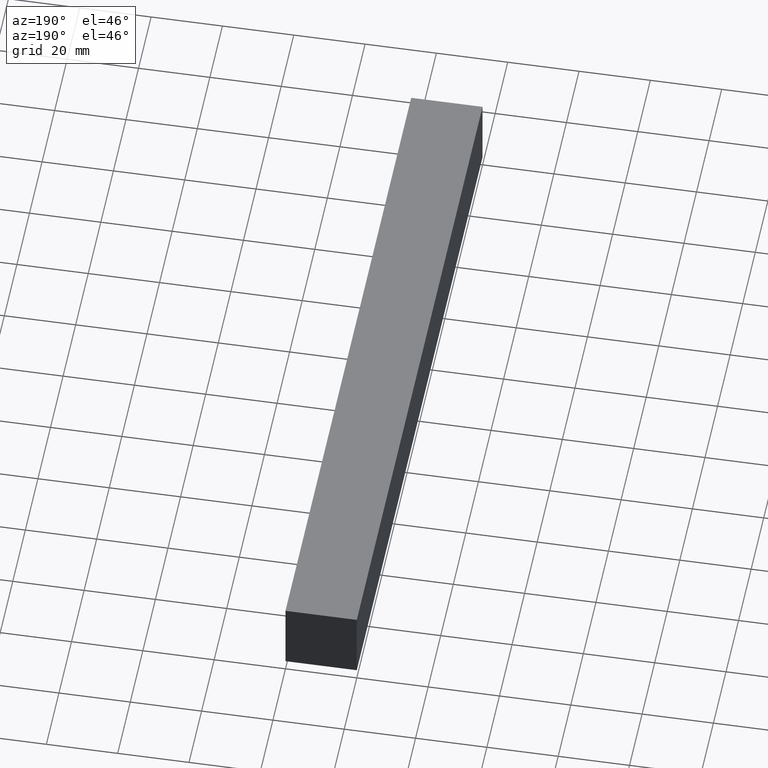
[diagram: clean part render]
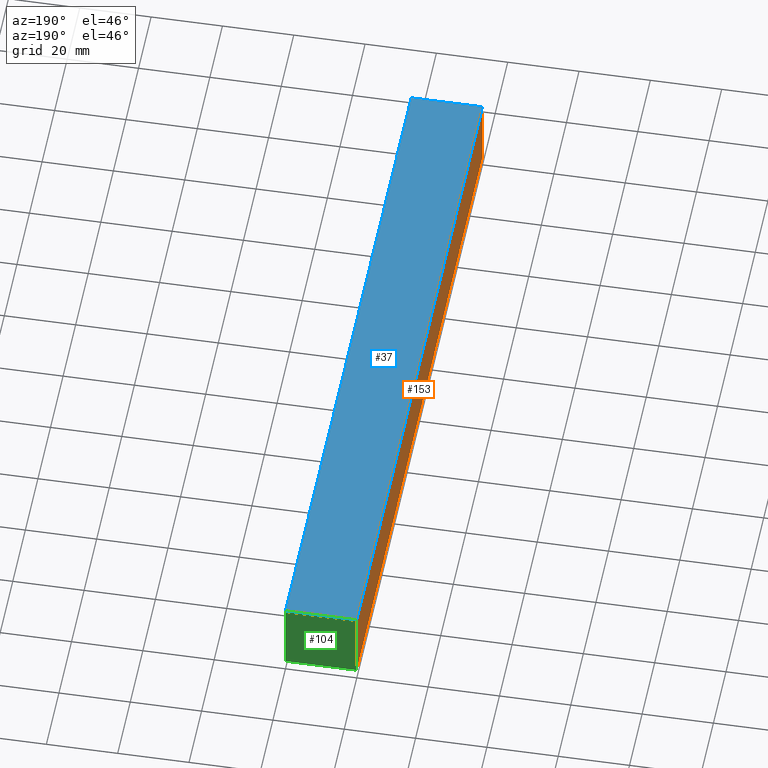
[diagram: same view with three faces highlighted in distinct colors, each labeled with its STEP entity id]
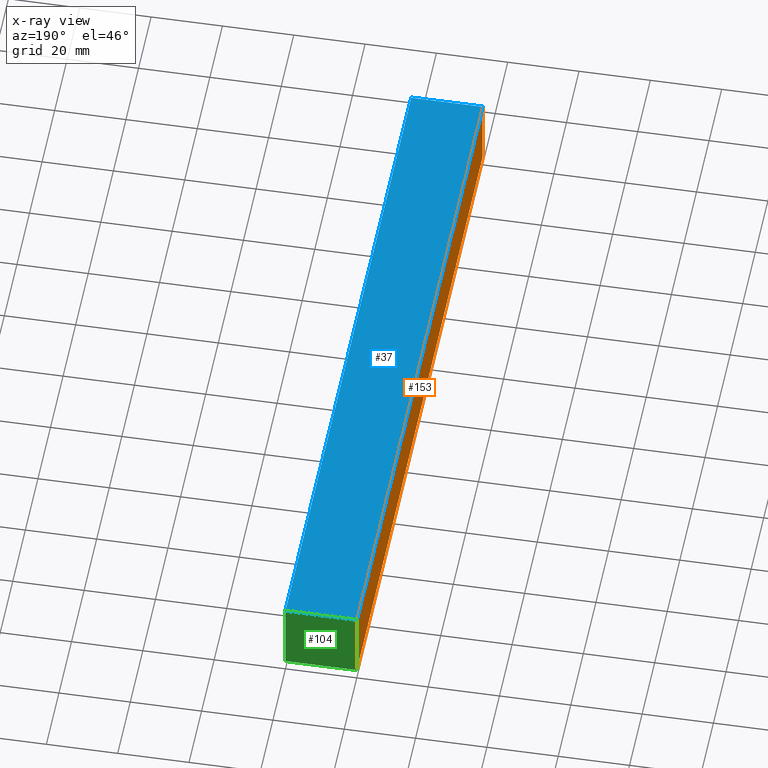
[diagram: x-ray of the same camera — body ghosted, the three highlighted faces saturated]
A machine part, auxiliary view with three faces highlighted in distinct colors.
The next image is the same camera in x-ray (body ghosted, the three faces saturated) — at least one of them is partly hidden behind the body in this view.
Their STEP definitions:

[orange] entity #153 — the highlighted planar face has unit normal (1, 0, 0).
#7 = VERTEX_POINT ( 'NONE', #74 ) ;
#13 = FACE_OUTER_BOUND ( 'NONE', #182, .T. ) ;
#15 = ORIENTED_EDGE ( 'NONE', *, *, #77, .F. ) ;
#35 = VECTOR ( 'NONE', #127, 1000.000000000000000 ) ;
#41 = CARTESIAN_POINT ( 'NONE',  ( 0.0000000000000000000, 0.0000000000000000000, 20.00000000000000000 ) ) ;
#42 = EDGE_CURVE ( 'NONE', #7, #183, #80, .T. ) ;
#48 = LINE ( 'NONE', #82, #171 ) ;
#52 = ORIENTED_EDGE ( 'NONE', *, *, #53, .T. ) ;
#53 = EDGE_CURVE ( 'NONE', #183, #152, #164, .T. ) ;
#56 = VECTOR ( 'NONE', #102, 1000.000000000000000 ) ;
#58 = DIRECTION ( 'NONE',  ( 0.0000000000000000000, 0.0000000000000000000, 1.000000000000000000 ) ) ;
#60 = PLANE ( 'NONE',  #138 ) ;
#69 = VERTEX_POINT ( 'NONE', #121 ) ;
#74 = CARTESIAN_POINT ( 'NONE',  ( 0.0000000000000000000, 200.0000000000000000, 0.0000000000000000000 ) ) ;
#77 = EDGE_CURVE ( 'NONE', #69, #152, #96, .T. ) ;
#79 = CARTESIAN_POINT ( 'NONE',  ( 0.0000000000000000000, 0.0000000000000000000, 0.0000000000000000000 ) ) ;
#80 = LINE ( 'NONE', #81, #56 ) ;
#81 = CARTESIAN_POINT ( 'NONE',  ( 0.0000000000000000000, 1000.000000000000000, 0.0000000000000000000 ) ) ;
#82 = CARTESIAN_POINT ( 'NONE',  ( 0.0000000000000000000, 200.0000000000000000, 0.0000000000000000000 ) ) ;
#86 = DIRECTION ( 'NONE',  ( 0.0000000000000000000, 0.0000000000000000000, -1.000000000000000000 ) ) ;
#96 = LINE ( 'NONE', #208, #35 ) ;
#102 = DIRECTION ( 'NONE',  ( 0.0000000000000000000, -1.000000000000000000, 0.0000000000000000000 ) ) ;
#105 = ORIENTED_EDGE ( 'NONE', *, *, #42, .T. ) ;
#110 = ORIENTED_EDGE ( 'NONE', *, *, #210, .F. ) ;
#121 = CARTESIAN_POINT ( 'NONE',  ( 0.0000000000000000000, 200.0000000000000000, 20.00000000000000000 ) ) ;
#127 = DIRECTION ( 'NONE',  ( 0.0000000000000000000, -1.000000000000000000, 0.0000000000000000000 ) ) ;
#138 = AXIS2_PLACEMENT_3D ( 'NONE', #235, #191, #86 ) ;
#152 = VERTEX_POINT ( 'NONE', #41 ) ;
#153 = ADVANCED_FACE ( 'NONE', ( #13 ), #60, .F. ) ;
#154 = VECTOR ( 'NONE', #204, 1000.000000000000000 ) ;
#163 = CARTESIAN_POINT ( 'NONE',  ( 0.0000000000000000000, 0.0000000000000000000, 0.0000000000000000000 ) ) ;
#164 = LINE ( 'NONE', #79, #154 ) ;
#171 = VECTOR ( 'NONE', #58, 1000.000000000000000 ) ;
#182 = EDGE_LOOP ( 'NONE', ( #52, #15, #110, #105 ) ) ;
#183 = VERTEX_POINT ( 'NONE', #163 ) ;
#191 = DIRECTION ( 'NONE',  ( 1.000000000000000000, 0.0000000000000000000, 0.0000000000000000000 ) ) ;
#204 = DIRECTION ( 'NONE',  ( 0.0000000000000000000, 0.0000000000000000000, 1.000000000000000000 ) ) ;
#208 = CARTESIAN_POINT ( 'NONE',  ( 0.0000000000000000000, 1000.000000000000000, 20.00000000000000000 ) ) ;
#210 = EDGE_CURVE ( 'NONE', #7, #69, #48, .T. ) ;
#235 = CARTESIAN_POINT ( 'NONE',  ( 0.0000000000000000000, 1000.000000000000000, 0.0000000000000000000 ) ) ;

[blue] entity #37 — the highlighted planar face has unit normal (0, 0, -1).
#8 = DIRECTION ( 'NONE',  ( 0.0000000000000000000, 0.0000000000000000000, -1.000000000000000000 ) ) ;
#17 = EDGE_CURVE ( 'NONE', #152, #140, #156, .T. ) ;
#26 = DIRECTION ( 'NONE',  ( -1.000000000000000000, 0.0000000000000000000, 0.0000000000000000000 ) ) ;
#29 = EDGE_CURVE ( 'NONE', #32, #140, #201, .T. ) ;
#32 = VERTEX_POINT ( 'NONE', #101 ) ;
#35 = VECTOR ( 'NONE', #127, 1000.000000000000000 ) ;
#36 = AXIS2_PLACEMENT_3D ( 'NONE', #233, #8, #26 ) ;
#37 = ADVANCED_FACE ( 'NONE', ( #209 ), #188, .F. ) ;
#41 = CARTESIAN_POINT ( 'NONE',  ( 0.0000000000000000000, 0.0000000000000000000, 20.00000000000000000 ) ) ;
#69 = VERTEX_POINT ( 'NONE', #121 ) ;
#75 = CARTESIAN_POINT ( 'NONE',  ( 20.00000000000000000, 1000.000000000000000, 20.00000000000000000 ) ) ;
#76 = DIRECTION ( 'NONE',  ( 1.000000000000000000, 0.0000000000000000000, 0.0000000000000000000 ) ) ;
#77 = EDGE_CURVE ( 'NONE', #69, #152, #96, .T. ) ;
#96 = LINE ( 'NONE', #208, #35 ) ;
#101 = CARTESIAN_POINT ( 'NONE',  ( 20.00000000000000000, 200.0000000000000000, 20.00000000000000000 ) ) ;
#121 = CARTESIAN_POINT ( 'NONE',  ( 0.0000000000000000000, 200.0000000000000000, 20.00000000000000000 ) ) ;
#127 = DIRECTION ( 'NONE',  ( 0.0000000000000000000, -1.000000000000000000, 0.0000000000000000000 ) ) ;
#130 = ORIENTED_EDGE ( 'NONE', *, *, #224, .F. ) ;
#140 = VERTEX_POINT ( 'NONE', #211 ) ;
#145 = VECTOR ( 'NONE', #236, 1000.000000000000000 ) ;
#148 = DIRECTION ( 'NONE',  ( 0.0000000000000000000, -1.000000000000000000, 0.0000000000000000000 ) ) ;
#152 = VERTEX_POINT ( 'NONE', #41 ) ;
#156 = LINE ( 'NONE', #176, #145 ) ;
#174 = LINE ( 'NONE', #175, #223 ) ;
#175 = CARTESIAN_POINT ( 'NONE',  ( 0.0000000000000000000, 200.0000000000000000, 20.00000000000000000 ) ) ;
#176 = CARTESIAN_POINT ( 'NONE',  ( 0.0000000000000000000, 0.0000000000000000000, 20.00000000000000000 ) ) ;
#177 = ORIENTED_EDGE ( 'NONE', *, *, #29, .F. ) ;
#185 = EDGE_LOOP ( 'NONE', ( #189, #177, #130, #198 ) ) ;
#188 = PLANE ( 'NONE',  #36 ) ;
#189 = ORIENTED_EDGE ( 'NONE', *, *, #17, .T. ) ;
#198 = ORIENTED_EDGE ( 'NONE', *, *, #77, .T. ) ;
#201 = LINE ( 'NONE', #75, #238 ) ;
#208 = CARTESIAN_POINT ( 'NONE',  ( 0.0000000000000000000, 1000.000000000000000, 20.00000000000000000 ) ) ;
#209 = FACE_OUTER_BOUND ( 'NONE', #185, .T. ) ;
#211 = CARTESIAN_POINT ( 'NONE',  ( 20.00000000000000000, 0.0000000000000000000, 20.00000000000000000 ) ) ;
#223 = VECTOR ( 'NONE', #76, 1000.000000000000000 ) ;
#224 = EDGE_CURVE ( 'NONE', #69, #32, #174, .T. ) ;
#233 = CARTESIAN_POINT ( 'NONE',  ( 0.0000000000000000000, 1000.000000000000000, 20.00000000000000000 ) ) ;
#236 = DIRECTION ( 'NONE',  ( 1.000000000000000000, 0.0000000000000000000, 0.0000000000000000000 ) ) ;
#238 = VECTOR ( 'NONE', #148, 1000.000000000000000 ) ;

[green] entity #104 — the highlighted planar face has unit normal (0, 1, 0).
#1 = LINE ( 'NONE', #119, #151 ) ;
#2 = PLANE ( 'NONE',  #30 ) ;
#3 = DIRECTION ( 'NONE',  ( 1.000000000000000000, 0.0000000000000000000, 0.0000000000000000000 ) ) ;
#7 = VERTEX_POINT ( 'NONE', #74 ) ;
#10 = DIRECTION ( 'NONE',  ( 0.0000000000000000000, 0.0000000000000000000, -1.000000000000000000 ) ) ;
#19 = ORIENTED_EDGE ( 'NONE', *, *, #112, .T. ) ;
#23 = ORIENTED_EDGE ( 'NONE', *, *, #129, .T. ) ;
#30 = AXIS2_PLACEMENT_3D ( 'NONE', #194, #111, #3 ) ;
#32 = VERTEX_POINT ( 'NONE', #101 ) ;
#44 = DIRECTION ( 'NONE',  ( -1.000000000000000000, 0.0000000000000000000, 0.0000000000000000000 ) ) ;
#48 = LINE ( 'NONE', #82, #171 ) ;
#51 = ORIENTED_EDGE ( 'NONE', *, *, #224, .T. ) ;
#58 = DIRECTION ( 'NONE',  ( 0.0000000000000000000, 0.0000000000000000000, 1.000000000000000000 ) ) ;
#69 = VERTEX_POINT ( 'NONE', #121 ) ;
#74 = CARTESIAN_POINT ( 'NONE',  ( 0.0000000000000000000, 200.0000000000000000, 0.0000000000000000000 ) ) ;
#76 = DIRECTION ( 'NONE',  ( 1.000000000000000000, 0.0000000000000000000, 0.0000000000000000000 ) ) ;
#82 = CARTESIAN_POINT ( 'NONE',  ( 0.0000000000000000000, 200.0000000000000000, 0.0000000000000000000 ) ) ;
#90 = FACE_OUTER_BOUND ( 'NONE', #162, .T. ) ;
#91 = VECTOR ( 'NONE', #10, 1000.000000000000000 ) ;
#101 = CARTESIAN_POINT ( 'NONE',  ( 20.00000000000000000, 200.0000000000000000, 20.00000000000000000 ) ) ;
#104 = ADVANCED_FACE ( 'NONE', ( #90 ), #2, .T. ) ;
#111 = DIRECTION ( 'NONE',  ( -0.0000000000000000000, 1.000000000000000000, 0.0000000000000000000 ) ) ;
#112 = EDGE_CURVE ( 'NONE', #32, #122, #180, .T. ) ;
#119 = CARTESIAN_POINT ( 'NONE',  ( 20.00000000000000000, 200.0000000000000000, 0.0000000000000000000 ) ) ;
#121 = CARTESIAN_POINT ( 'NONE',  ( 0.0000000000000000000, 200.0000000000000000, 20.00000000000000000 ) ) ;
#122 = VERTEX_POINT ( 'NONE', #200 ) ;
#129 = EDGE_CURVE ( 'NONE', #122, #7, #1, .T. ) ;
#151 = VECTOR ( 'NONE', #44, 1000.000000000000000 ) ;
#162 = EDGE_LOOP ( 'NONE', ( #51, #19, #23, #222 ) ) ;
#171 = VECTOR ( 'NONE', #58, 1000.000000000000000 ) ;
#174 = LINE ( 'NONE', #175, #223 ) ;
#175 = CARTESIAN_POINT ( 'NONE',  ( 0.0000000000000000000, 200.0000000000000000, 20.00000000000000000 ) ) ;
#180 = LINE ( 'NONE', #190, #91 ) ;
#190 = CARTESIAN_POINT ( 'NONE',  ( 20.00000000000000000, 200.0000000000000000, 20.00000000000000000 ) ) ;
#194 = CARTESIAN_POINT ( 'NONE',  ( 0.0000000000000000000, 200.0000000000000000, 0.0000000000000000000 ) ) ;
#200 = CARTESIAN_POINT ( 'NONE',  ( 20.00000000000000000, 200.0000000000000000, 0.0000000000000000000 ) ) ;
#210 = EDGE_CURVE ( 'NONE', #7, #69, #48, .T. ) ;
#222 = ORIENTED_EDGE ( 'NONE', *, *, #210, .T. ) ;
#223 = VECTOR ( 'NONE', #76, 1000.000000000000000 ) ;
#224 = EDGE_CURVE ( 'NONE', #69, #32, #174, .T. ) ;